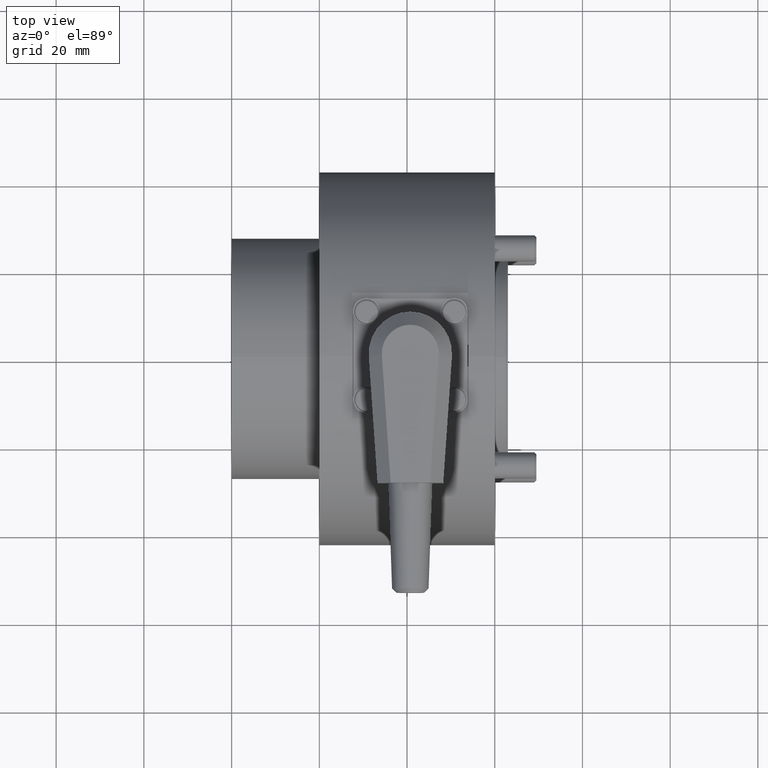
[diagram: clean part render]
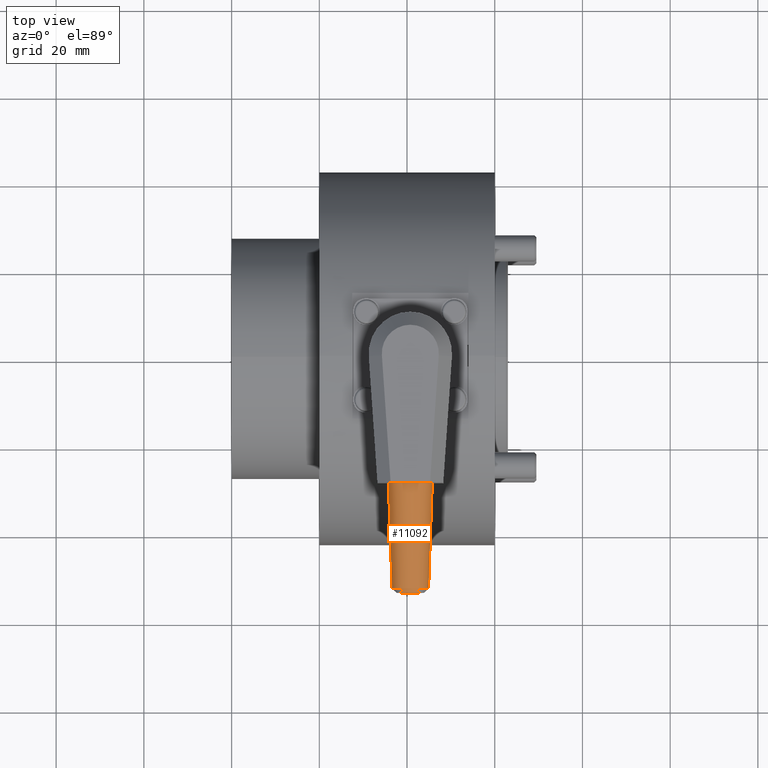
[diagram: same view with one face highlighted and labeled with its STEP entity id]
A machine part, top view. The second image highlights one B-rep face of the part: STEP entity #11092.
In plain terms, the highlighted conical surface has half-angle 2 deg.
Its self-contained STEP definition (entity closure, byte-faithful):
#10982=CARTESIAN_POINT('',(-65.150379313954573,-156.021489448202630,7.000000000000002));
#10983=VERTEX_POINT('',#10982);
#10984=CARTESIAN_POINT('',(-64.312259573363377,-132.020880275221710,7.0));
#10985=VERTEX_POINT('',#10984);
#10986=CARTESIAN_POINT('',(-65.150379313954573,-156.021489448202630,7.000000000000002));
#10987=DIRECTION('',(0.034899496702501,0.999390827019096,-7.396790E-017));
#10988=VECTOR('',#10987,24.015238607470554);
#10989=LINE('',#10986,#10988);
#10990=EDGE_CURVE('',#10983,#10985,#10989,.T.);
#10992=CARTESIAN_POINT('',(-73.474139832772195,-156.021489448202630,7.0));
#10993=VERTEX_POINT('',#10992);
#11001=CARTESIAN_POINT('',(-74.312259573363377,-132.020880275221710,6.999999999999999));
#11002=VERTEX_POINT('',#11001);
#11003=CARTESIAN_POINT('',(-73.474139832772195,-156.021489448202630,7.0));
#11004=DIRECTION('',(-0.034899496702501,0.999390827019096,-3.698395E-017));
#11005=VECTOR('',#11004,24.015238607470554);
#11006=LINE('',#11003,#11005);
#11007=EDGE_CURVE('',#10993,#11002,#11006,.T.);
#11065=CARTESIAN_POINT('',(-69.312259573363377,-156.021489448202630,7.0));
#11066=DIRECTION('',(0.0,-1.0,0.0));
#11067=DIRECTION('',(-1.0,0.0,0.0));
#11068=AXIS2_PLACEMENT_3D('',#11065,#11066,#11067);
#11069=CIRCLE('',#11068,4.161880259408804);
#11070=EDGE_CURVE('',#10983,#10993,#11069,.T.);
#11075=CARTESIAN_POINT('',(-69.312259573363377,-132.020880275221710,7.0));
#11076=DIRECTION('',(0.0,1.0,0.0));
#11077=DIRECTION('',(1.0,0.0,0.0));
#11078=AXIS2_PLACEMENT_3D('',#11075,#11076,#11077);
#11079=CONICAL_SURFACE('',#11078,5.0,2.0);
#11080=ORIENTED_EDGE('',*,*,#10990,.T.);
#11081=CARTESIAN_POINT('',(-69.312259573363377,-132.020880275221710,7.0));
#11082=DIRECTION('',(0.0,1.0,0.0));
#11083=DIRECTION('',(1.0,0.0,0.0));
#11084=AXIS2_PLACEMENT_3D('',#11081,#11082,#11083);
#11085=CIRCLE('',#11084,5.0);
#11086=EDGE_CURVE('',#11002,#10985,#11085,.T.);
#11087=ORIENTED_EDGE('',*,*,#11086,.F.);
#11088=ORIENTED_EDGE('',*,*,#11007,.F.);
#11089=ORIENTED_EDGE('',*,*,#11070,.F.);
#11090=EDGE_LOOP('',(#11080,#11087,#11088,#11089));
#11091=FACE_OUTER_BOUND('',#11090,.T.);
#11092=ADVANCED_FACE('',(#11091),#11079,.T.);